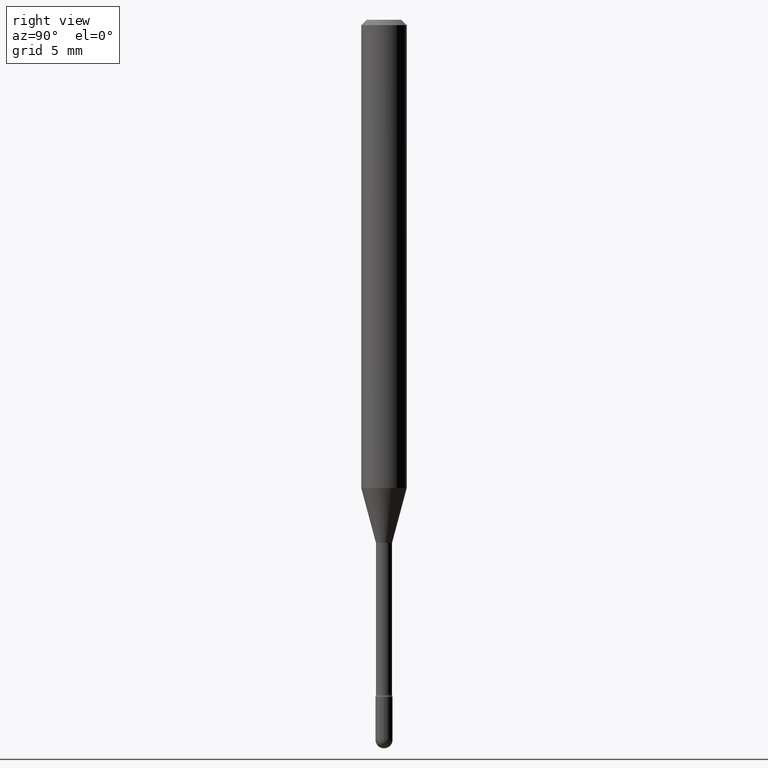
[diagram: clean part render]
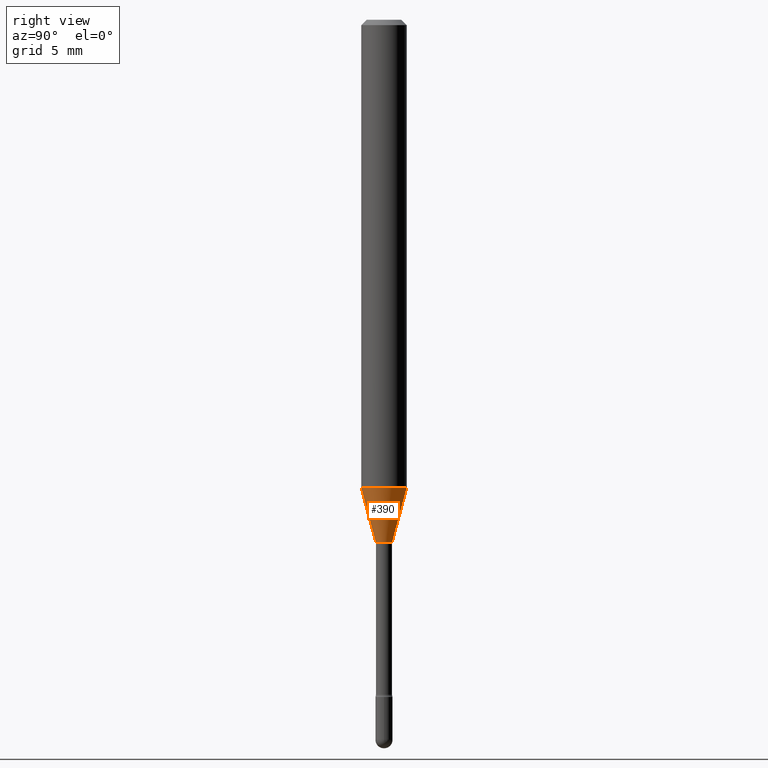
[diagram: same view with one face highlighted and labeled with its STEP entity id]
A machine part, right view. The second image highlights one B-rep face of the part: STEP entity #390.
In plain terms, the highlighted conical surface has half-angle 15 deg.
Its self-contained STEP definition (entity closure, byte-faithful):
#6 = CARTESIAN_POINT ( 'NONE',  ( 4.440892098500937762E-16, 0.06249999999999548278, -1.285225147374218224 ) ) ;
#12 = CARTESIAN_POINT ( 'NONE',  ( -4.364351673553603615E-16, -0.06250000000000451028, -1.285225147374217780 ) ) ;
#43 = ORIENTED_EDGE ( 'NONE', *, *, #140, .F. ) ;
#86 = DIRECTION ( 'NONE',  ( -1.807323732225328562E-15, -0.2588190451025179639, 0.9659258262890689783 ) ) ;
#95 = DIRECTION ( 'NONE',  ( 1.839019923739599526E-15, 0.2588190451025248473, 0.9659258262890673130 ) ) ;
#109 = CIRCLE ( 'NONE', #422, 0.02261111260566398690 ) ;
#115 = EDGE_CURVE ( 'NONE', #424, #504, #137, .T. ) ;
#122 = VERTEX_POINT ( 'NONE', #267 ) ;
#137 = LINE ( 'NONE', #181, #505 ) ;
#140 = EDGE_CURVE ( 'NONE', #122, #346, #352, .T. ) ;
#171 = CARTESIAN_POINT ( 'NONE',  ( 3.142959153977918032E-29, -4.487366616623861498E-15, -1.285225147374218002 ) ) ;
#181 = CARTESIAN_POINT ( 'NONE',  ( 1.606616180941167967E-16, 0.02261111260565898048, -1.434092501787273211 ) ) ;
#217 = ORIENTED_EDGE ( 'NONE', *, *, #115, .T. ) ;
#224 = AXIS2_PLACEMENT_3D ( 'NONE', #538, #266, #448 ) ;
#231 = DIRECTION ( 'NONE',  ( -6.982962677686265922E-15, -1.000000000000000000, 0.000000000000000000 ) ) ;
#237 = EDGE_CURVE ( 'NONE', #346, #504, #397, .T. ) ;
#239 = ORIENTED_EDGE ( 'NONE', *, *, #382, .T. ) ;
#246 = CONICAL_SURFACE ( 'NONE', #224, 0.02261111260566398690, 0.2617993877991501295 ) ;
#260 = CARTESIAN_POINT ( 'NONE',  ( 3.507007441732712953E-29, -5.007137333733671599E-15, -1.434092501787273211 ) ) ;
#266 = DIRECTION ( 'NONE',  ( -2.445454137276373671E-29, 3.491502345555396345E-15, 1.000000000000000000 ) ) ;
#267 = CARTESIAN_POINT ( 'NONE',  ( -1.578925554262780210E-16, -0.02261111260566899331, -1.434092501787273211 ) ) ;
#318 = CARTESIAN_POINT ( 'NONE',  ( 3.023754139721055453E-16, 0.02261111260565898395, -1.434092501787273211 ) ) ;
#326 = ORIENTED_EDGE ( 'NONE', *, *, #237, .F. ) ;
#346 = VERTEX_POINT ( 'NONE', #12 ) ;
#352 = LINE ( 'NONE', #399, #484 ) ;
#368 = DIRECTION ( 'NONE',  ( -2.445454137276373671E-29, 3.491502345555396345E-15, 1.000000000000000000 ) ) ;
#382 = EDGE_CURVE ( 'NONE', #122, #424, #109, .T. ) ;
#390 = ADVANCED_FACE ( 'NONE', ( #405 ), #246, .T. ) ;
#392 = EDGE_LOOP ( 'NONE', ( #239, #217, #326, #43 ) ) ;
#397 = CIRCLE ( 'NONE', #458, 0.06250000000000000000 ) ;
#399 = CARTESIAN_POINT ( 'NONE',  ( -1.578925554262780210E-16, -0.02261111260566899331, -1.434092501787273211 ) ) ;
#405 = FACE_OUTER_BOUND ( 'NONE', #392, .T. ) ;
#422 = AXIS2_PLACEMENT_3D ( 'NONE', #260, #368, #231 ) ;
#424 = VERTEX_POINT ( 'NONE', #318 ) ;
#448 = DIRECTION ( 'NONE',  ( -6.982962677686265922E-15, -1.000000000000000000, 0.000000000000000000 ) ) ;
#458 = AXIS2_PLACEMENT_3D ( 'NONE', #171, #559, #475 ) ;
#475 = DIRECTION ( 'NONE',  ( -6.982962677686265922E-15, -1.000000000000000000, 4.370956789862821150E-15 ) ) ;
#484 = VECTOR ( 'NONE', #86, 39.37007874015749564 ) ;
#504 = VERTEX_POINT ( 'NONE', #6 ) ;
#505 = VECTOR ( 'NONE', #95, 39.37007874015747433 ) ;
#538 = CARTESIAN_POINT ( 'NONE',  ( 3.507007441732712953E-29, -5.007137333733671599E-15, -1.434092501787273211 ) ) ;
#559 = DIRECTION ( 'NONE',  ( -2.445454137276373671E-29, 3.491502345555396345E-15, 1.000000000000000000 ) ) ;